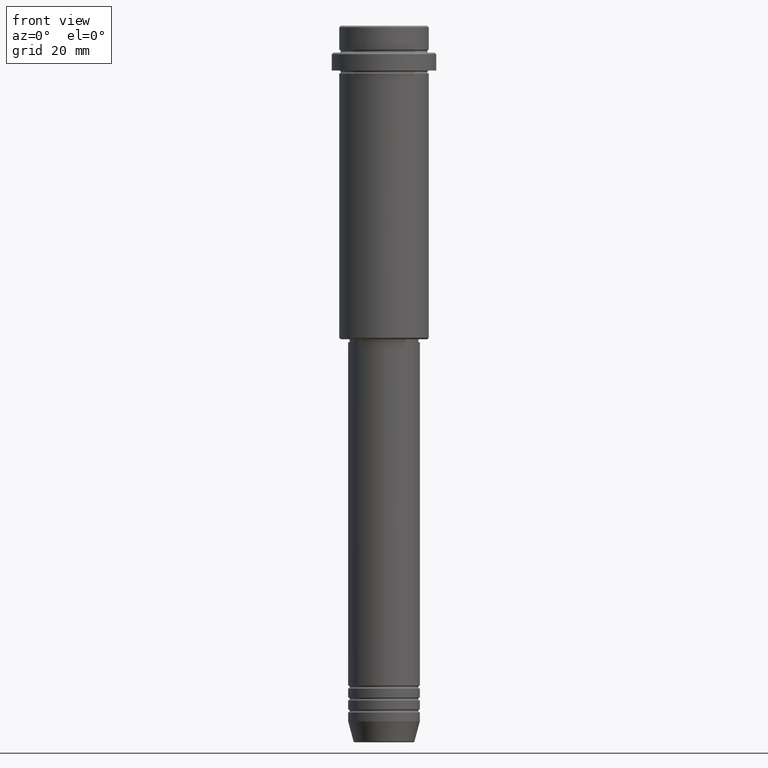
[diagram: clean part render]
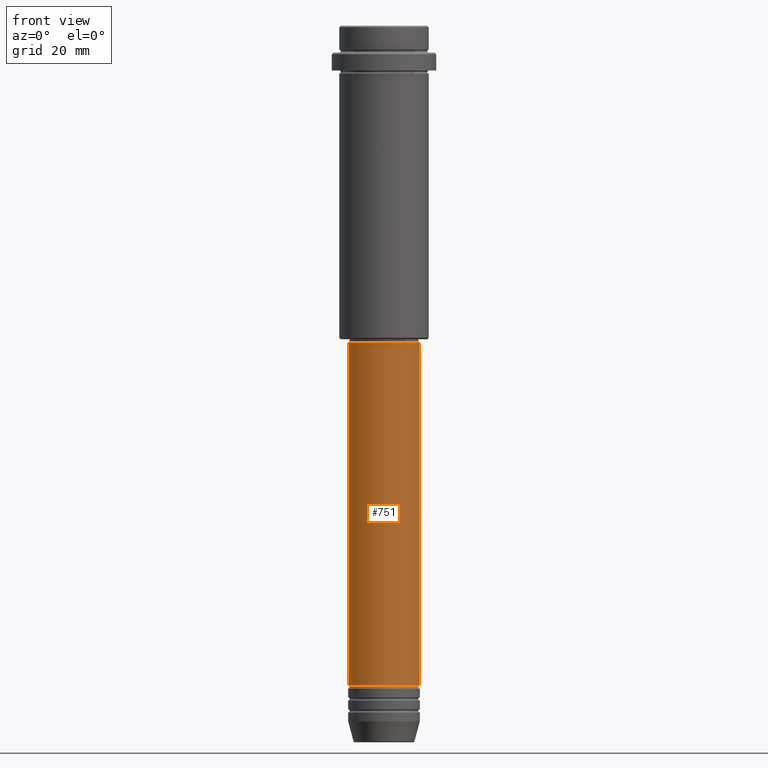
[diagram: same view with one face highlighted and labeled with its STEP entity id]
A machine part, front view. The second image highlights one B-rep face of the part: STEP entity #751.
In plain terms, the highlighted cylindrical surface (edge-blend (fillet) strip) has radius 12 mm, axis along (-0, -0, 1).
Its self-contained STEP definition (entity closure, byte-faithful):
#25 = CARTESIAN_POINT ( 'NONE',  ( -12.00000000000000000, 1.469576158976823947E-15, -220.9999999999999432 ) ) ;
#60 = VERTEX_POINT ( 'NONE', #25 ) ;
#66 = CARTESIAN_POINT ( 'NONE',  ( -12.00000000000000000, 1.469576158976823947E-15, 0.000000000000000000 ) ) ;
#70 = DIRECTION ( 'NONE',  ( 1.000000000000000000, 0.000000000000000000, 0.000000000000000000 ) ) ;
#117 = CARTESIAN_POINT ( 'NONE',  ( 12.00000000000000000, 0.000000000000000000, -220.9999999999999432 ) ) ;
#165 = EDGE_CURVE ( 'NONE', #60, #932, #1024, .T. ) ;
#182 = EDGE_CURVE ( 'NONE', #932, #825, #913, .T. ) ;
#218 = CIRCLE ( 'NONE', #1387, 12.00000000000000000 ) ;
#237 = AXIS2_PLACEMENT_3D ( 'NONE', #1156, #610, #70 ) ;
#354 = DIRECTION ( 'NONE',  ( -0.000000000000000000, -0.000000000000000000, 1.000000000000000000 ) ) ;
#375 = DIRECTION ( 'NONE',  ( -0.000000000000000000, -0.000000000000000000, 1.000000000000000000 ) ) ;
#381 = CARTESIAN_POINT ( 'NONE',  ( 0.000000000000000000, 0.000000000000000000, -106.0000000000000142 ) ) ;
#413 = FACE_OUTER_BOUND ( 'NONE', #471, .T. ) ;
#430 = CARTESIAN_POINT ( 'NONE',  ( 0.000000000000000000, 0.000000000000000000, -220.9999999999999432 ) ) ;
#471 = EDGE_LOOP ( 'NONE', ( #1122, #722, #1260, #1323 ) ) ;
#506 = LINE ( 'NONE', #753, #1331 ) ;
#519 = VERTEX_POINT ( 'NONE', #117 ) ;
#522 = CYLINDRICAL_SURFACE ( 'NONE', #237, 12.00000000000000000 ) ;
#610 = DIRECTION ( 'NONE',  ( -0.000000000000000000, -0.000000000000000000, 1.000000000000000000 ) ) ;
#667 = AXIS2_PLACEMENT_3D ( 'NONE', #381, #375, #1236 ) ;
#722 = ORIENTED_EDGE ( 'NONE', *, *, #1399, .T. ) ;
#751 = ADVANCED_FACE ( 'NONE', ( #413 ), #522, .T. ) ;
#753 = CARTESIAN_POINT ( 'NONE',  ( 12.00000000000000000, 0.000000000000000000, 0.000000000000000000 ) ) ;
#825 = VERTEX_POINT ( 'NONE', #1273 ) ;
#860 = EDGE_CURVE ( 'NONE', #519, #825, #506, .T. ) ;
#880 = DIRECTION ( 'NONE',  ( -0.000000000000000000, -0.000000000000000000, 1.000000000000000000 ) ) ;
#913 = CIRCLE ( 'NONE', #667, 11.99999999999999822 ) ;
#932 = VERTEX_POINT ( 'NONE', #1202 ) ;
#1024 = LINE ( 'NONE', #66, #1177 ) ;
#1111 = DIRECTION ( 'NONE',  ( 1.000000000000000000, 0.000000000000000000, 0.000000000000000000 ) ) ;
#1122 = ORIENTED_EDGE ( 'NONE', *, *, #165, .F. ) ;
#1156 = CARTESIAN_POINT ( 'NONE',  ( 0.000000000000000000, 0.000000000000000000, 0.000000000000000000 ) ) ;
#1177 = VECTOR ( 'NONE', #1257, 1000.000000000000000 ) ;
#1202 = CARTESIAN_POINT ( 'NONE',  ( -11.99999999999999822, 1.469576158976823750E-15, -106.0000000000000142 ) ) ;
#1236 = DIRECTION ( 'NONE',  ( 1.000000000000000000, 0.000000000000000000, 0.000000000000000000 ) ) ;
#1257 = DIRECTION ( 'NONE',  ( -0.000000000000000000, -0.000000000000000000, 1.000000000000000000 ) ) ;
#1260 = ORIENTED_EDGE ( 'NONE', *, *, #860, .T. ) ;
#1273 = CARTESIAN_POINT ( 'NONE',  ( 11.99999999999999822, 0.000000000000000000, -106.0000000000000142 ) ) ;
#1323 = ORIENTED_EDGE ( 'NONE', *, *, #182, .F. ) ;
#1331 = VECTOR ( 'NONE', #880, 1000.000000000000000 ) ;
#1387 = AXIS2_PLACEMENT_3D ( 'NONE', #430, #354, #1111 ) ;
#1399 = EDGE_CURVE ( 'NONE', #60, #519, #218, .T. ) ;